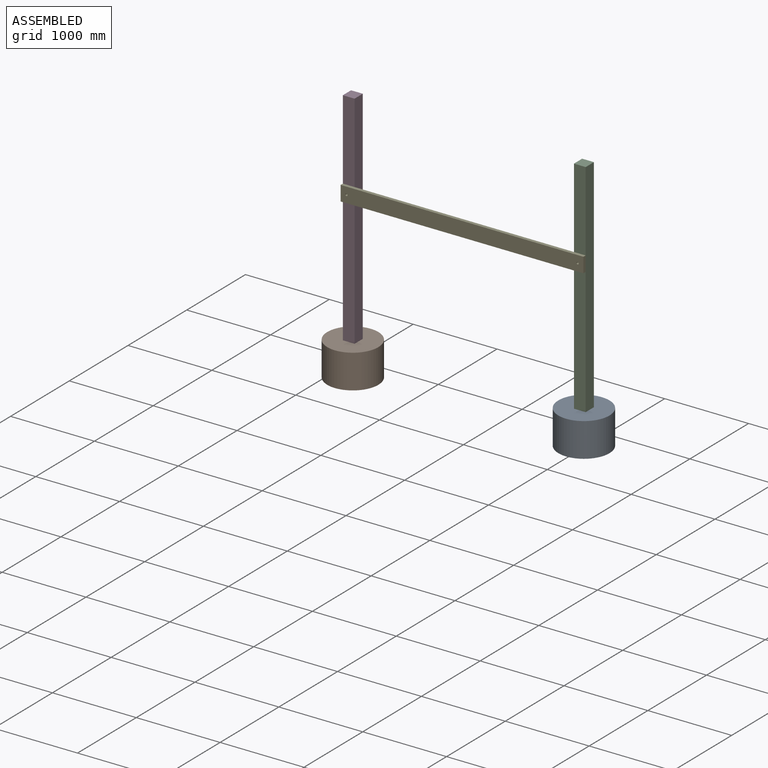
[diagram: assembled view]
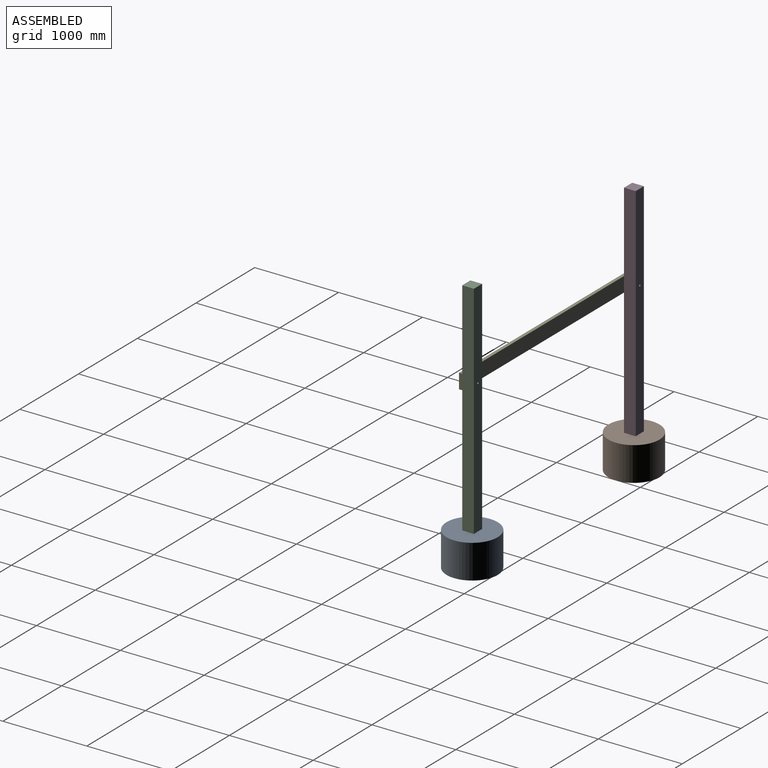
[diagram: assembled view, second angle]
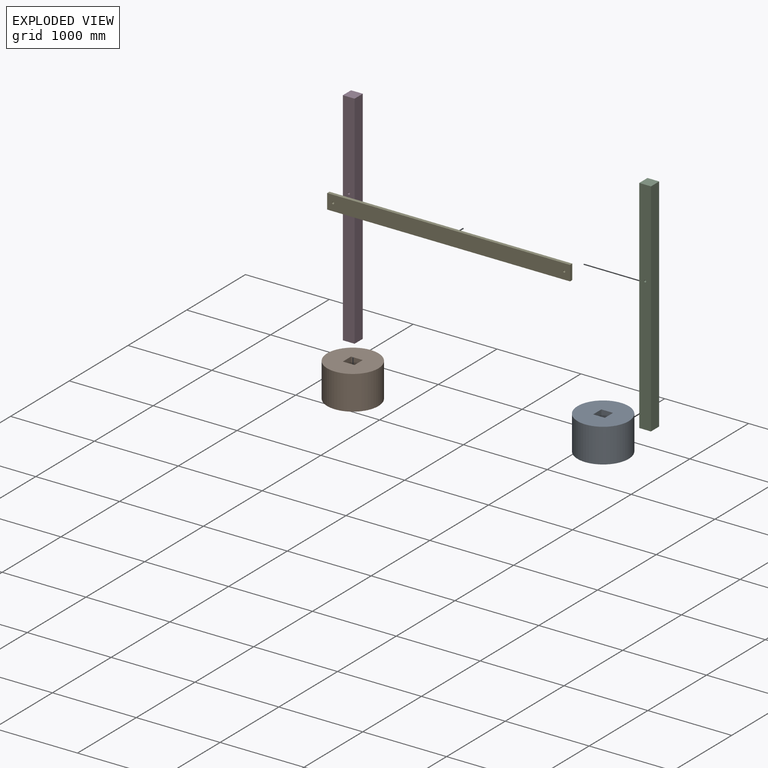
[diagram: exploded view]
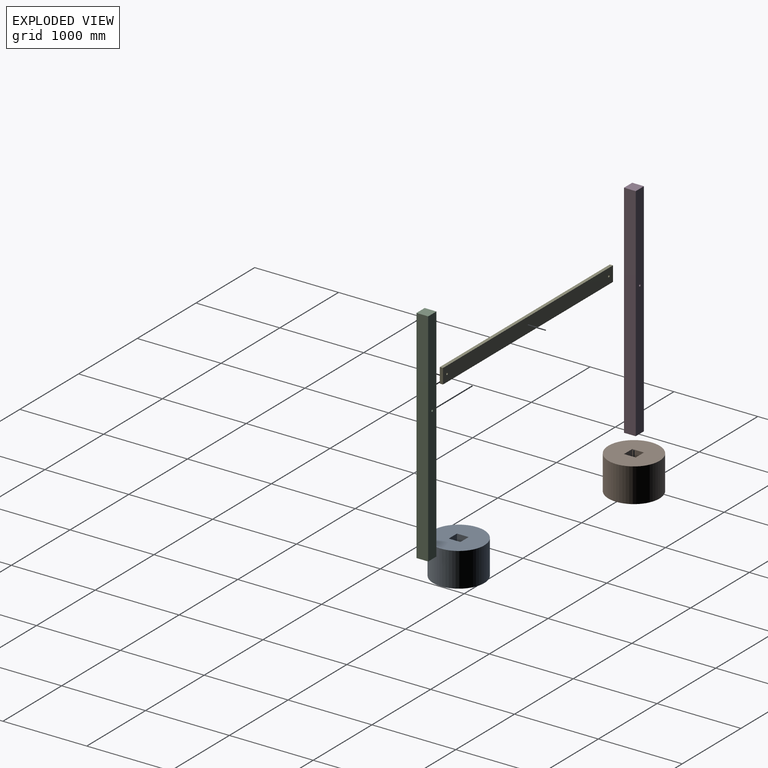
[diagram: exploded view, second angle]
ASSEMBLY  parts=5 mates=3
PART A: 8 faces, bbox 609.6x609.6x406.4 mm
  f0: plane 203.2x139.7mm, normal (0,1,0), area 28387mm2, adj f1,f3,f5,f7
  f1: plane 203.2x139.7mm, normal (1,0,0), area 28387mm2, adj f0,f2,f5,f7
  f2: plane 203.2x139.7mm, normal (0,-1,0), area 28387mm2, adj f1,f3,f5,f7
  f3: plane 203.2x139.7mm, normal (-1,0,0), area 28387mm2, adj f0,f2,f5,f7
  f4: cylinder r=304.8mm len=609.6mm, axis (0,0,-1), area 778302.7mm2, adj f5,f6
  f5: plane 609.6x609.6mm, normal (0,0,1), area 272347.4mm2, adj f0,f1,f2,f3,f4
  f6: plane 609.6x609.6mm, normal (0,0,-1), area 291863.5mm2, adj f4
  f7: plane 139.7x139.7mm, normal (0,0,1), area 19516.1mm2, adj f0,f1,f2,f3
PART B: same geometry as A
PART C: 7 faces, bbox 139.7x139.7x2641.6 mm
  f0: plane 2641.6x139.7mm, normal (-1,0,0), area 369031.5mm2, adj f1,f4,f5,f6
  f1: plane 139.7x139.7mm, normal (0,0,-1), area 19516.1mm2, adj f0,f2,f5,f6
  f2: plane 2641.6x139.7mm, normal (1,0,0), area 369031.5mm2, adj f1,f4,f5,f6
  f3: cylinder r=12.7mm len=139.7mm, axis (0,1,0), area 11147.6mm2, adj f5,f6
  f4: plane 139.7x139.7mm, normal (0,0,1), area 19516.1mm2, adj f0,f2,f5,f6
  f5: plane 2641.6x139.7mm, normal (0,-1,0), area 368524.8mm2, adj f0,f1,f2,f3,f4
  f6: plane 2641.6x139.7mm, normal (0,1,0), area 368524.8mm2, adj f0,f1,f2,f3,f4
PART D: same geometry as C
PART E: 8 faces, bbox 2895.6x38.1x177.8 mm
  f0: plane 177.8x38.1mm, normal (-1,0,0), area 6774.2mm2, adj f1,f5,f6,f7
  f1: plane 2895.6x38.1mm, normal (0,0,-1), area 110322.4mm2, adj f0,f2,f6,f7
  f2: plane 177.8x38.1mm, normal (1,0,0), area 6774.2mm2, adj f1,f5,f6,f7
  f3: cylinder r=12.7mm len=38.1mm, axis (0,1,0), area 3040.2mm2, adj f6,f7
  f4: cylinder r=12.7mm len=38.1mm, axis (0,1,0), area 3040.2mm2, adj f6,f7
  f5: plane 2895.6x38.1mm, normal (0,0,1), area 110322.4mm2, adj f0,f2,f6,f7
  f6: plane 2895.6x177.8mm, normal (0,-1,0), area 513824.3mm2, adj f0,f1,f2,f3,f4,f5
  f7: plane 2895.6x177.8mm, normal (0,1,0), area 513824.3mm2, adj f0,f1,f2,f3,f4,f5
PLACE A rot(axis=(0,0,1),180deg) t=(118.51,-42.42,-547.94)mm
PLACE B t=(-2497.69,-103.26,-547.94)mm
PLACE C t=(188.36,-2.99,-30.42)mm fixed
PLACE D t=(-2567.54,-2.99,-30.42)mm fixed
PLACE E t=(-1186.99,-142.69,1759.33)mm
MATE fastened D.f1 <-> B.f4  axis (0,0,-1) through (-2567.54,-72.84,-141.54)mm
MATE fastened D.f3 <-> E.f3  axis (0,-1,0) through (-2567.54,-142.69,1458.66)mm
MATE fastened A.f4 <-> C.f1  axis (0,0,1) through (188.36,-72.84,-141.54)mm
